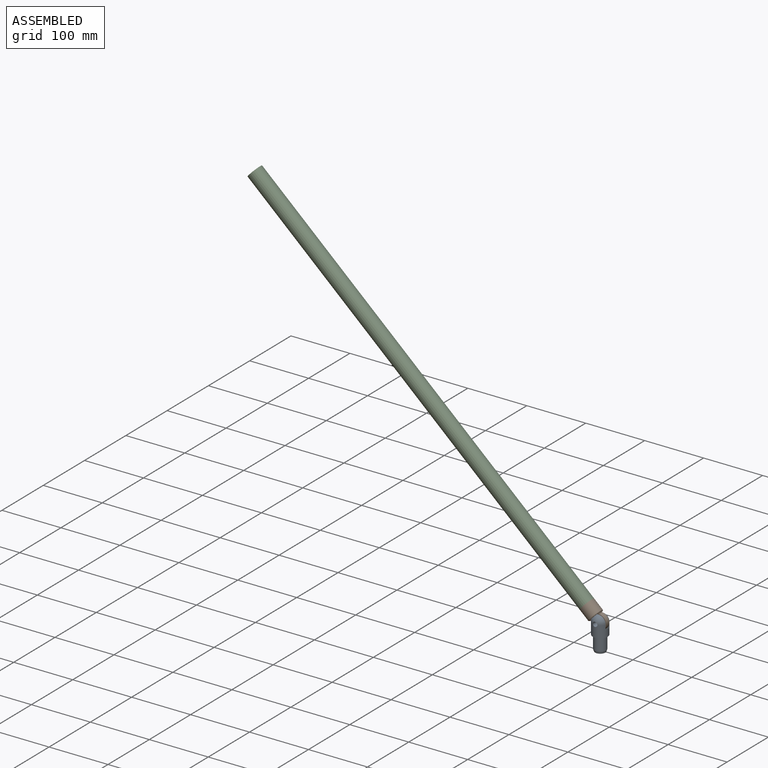
[diagram: assembled view]
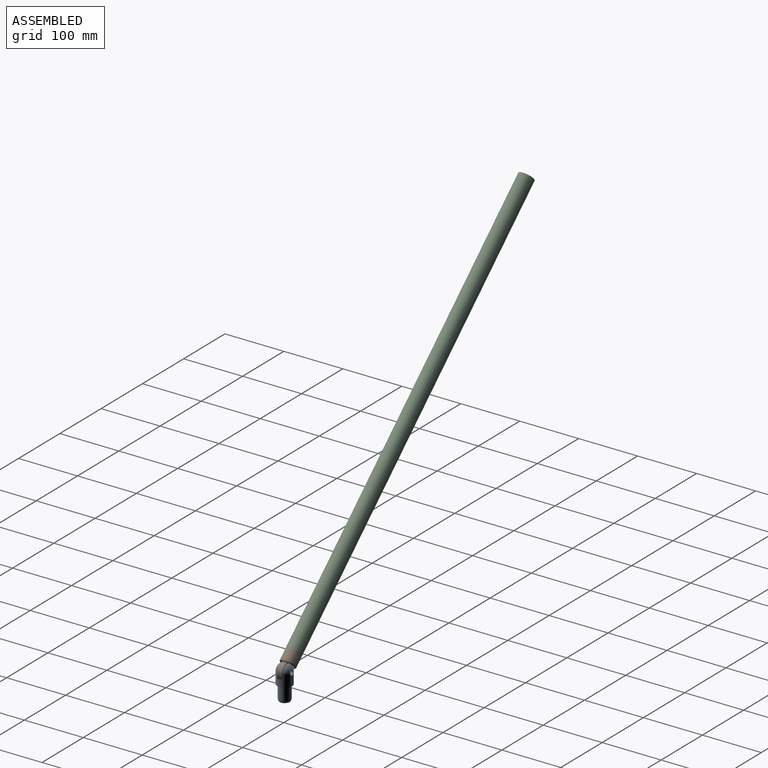
[diagram: assembled view, second angle]
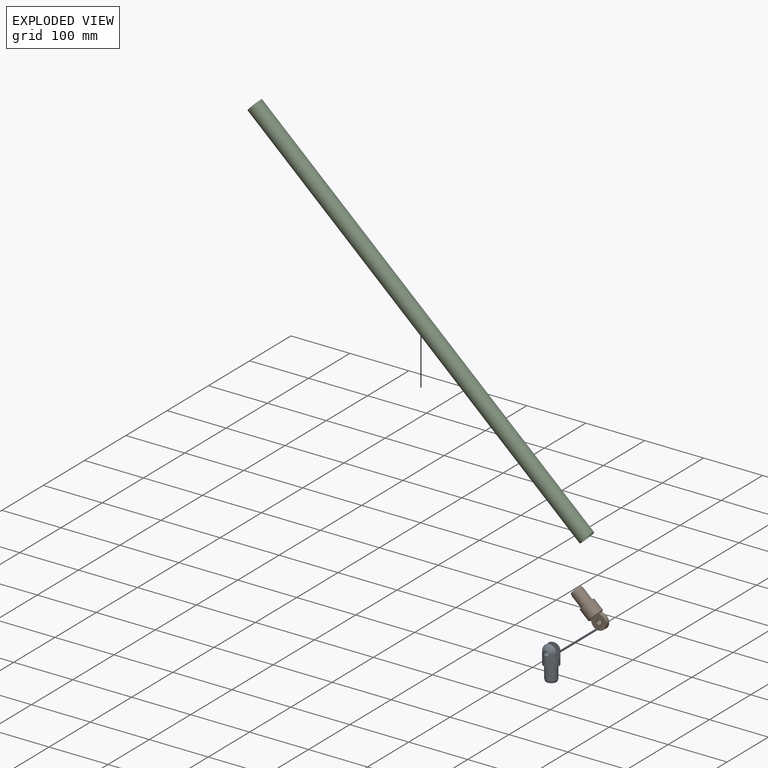
[diagram: exploded view]
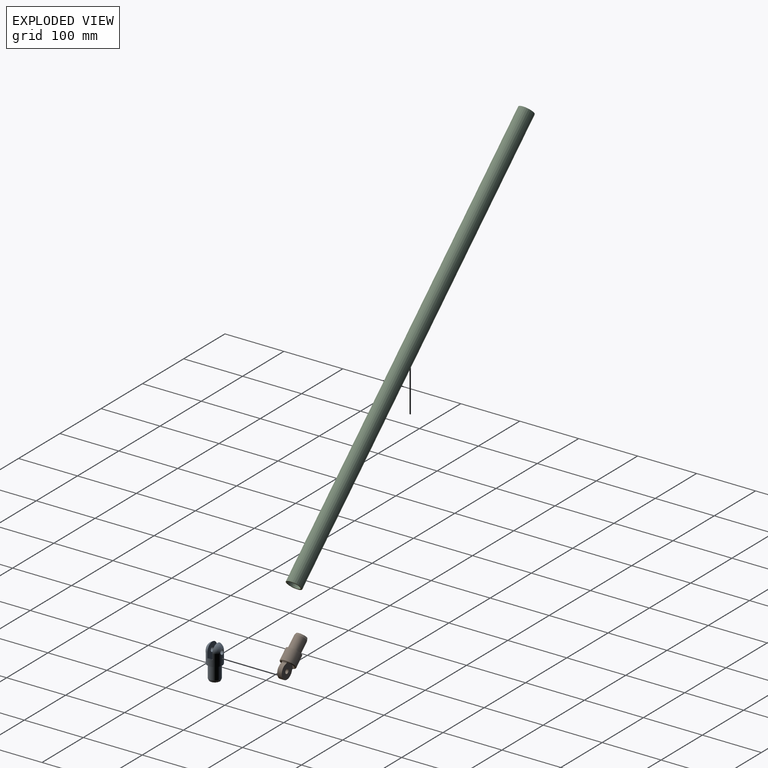
[diagram: exploded view, second angle]
ASSEMBLY  parts=3 mates=2
PART A: 12 faces, bbox 25.4x25.4x57.8 mm
  f0: sphere r=12.7mm, area 316.2mm2, adj f1,f6,f7
  f1: cylinder r=12.7mm len=25.4mm, axis (0,0,1), area 1425.6mm2, adj f0,f2,f3,f4,f5,f6,f7,f8
  f2: sphere r=12.7mm, area 316.2mm2, adj f1,f5,f8
  f3: plane 25.4x25.4mm, normal (0,0,-1), area 198.4mm2, adj f1,f9
  f4: cylinder r=15.24mm len=25.4mm, axis (0,1,0), area 244.8mm2, adj f1,f5,f6
  f5: plane 27.23x23.98mm, normal (0,1,0), area 503.2mm2, adj f1,f2,f4,f8
  f6: plane 27.23x23.98mm, normal (0,-1,0), area 503.2mm2, adj f0,f1,f4,f7
  f7: cylinder r=3.81mm len=8.51mm, axis (0,-1,0), area 193.2mm2, adj f0,f1,f6
  f8: cylinder r=3.81mm len=8.51mm, axis (0,-1,0), area 193.2mm2, adj f1,f2,f5
  f9: cylinder r=9.91mm len=21.91mm, axis (0,0,1), area 1363.7mm2, adj f3,f11
  f10: plane 17.27x17.27mm, normal (0,0,-1), area 234.3mm2, adj f11
  f11: cone r=8.64mm half-angle=20deg, axis (0,0,1), area 216.3mm2, adj f9,f10
PART B: 14 faces, bbox 27.5x27.5x68.6 mm
  f0: sphere r=13.33mm, area 105.3mm2, adj f6,f10
  f1: cylinder r=12.7mm len=25.4mm, axis (0,0,-1), area 1549.5mm2, adj f2,f10
  f2: plane 25.4x25.4mm, normal (0,0,-1), area 198.4mm2, adj f1,f11
  f3: sphere r=13.33mm, area 105.3mm2, adj f7,f10
  f4: plane 7.62x1.72mm, normal (0,0.83,0.56), area 15mm2, adj f6,f7,f8,f10
  f5: plane 7.62x1.72mm, normal (0,-0.83,0.56), area 15mm2, adj f6,f7,f8,f10
  f6: plane 26.77x25.42mm, normal (1,0,0), area 490.1mm2, adj f0,f4,f5,f8,f9,f10
  f7: plane 26.77x25.42mm, normal (-1,0,0), area 490.1mm2, adj f3,f4,f5,f8,f9,f10
  f8: cylinder r=12.7mm len=25.4mm, axis (-1,0,0), area 434.4mm2, adj f4,f5,f6,f7
  f9: cylinder r=3.81mm len=7.62mm, axis (-1,0,0), area 182.4mm2, adj f6,f7
  f10: torus R=11.18mm, axis (0,0,1), area 247.5mm2, adj f0,f1,f3,f4,f5,f6,f7
  f11: cylinder r=9.91mm len=21.91mm, axis (0,0,1), area 1363.7mm2, adj f2,f13
  f12: plane 17.27x17.27mm, normal (0,0,-1), area 234.3mm2, adj f13
  f13: cone r=8.64mm half-angle=20deg, axis (0,0,1), area 216.3mm2, adj f11,f12
PART C: 4 faces, bbox 25.4x25.4x762 mm
  f0: cylinder r=10.16mm len=762mm, axis (0,0,-1), area 48643.9mm2, adj f2,f3
  f1: cylinder r=12.7mm len=762mm, axis (0,0,-1), area 60804.9mm2, adj f2,f3
  f2: plane 25.4x25.4mm, normal (0,0,1), area 182.4mm2, adj f0,f1
  f3: plane 25.4x25.4mm, normal (0,0,-1), area 182.4mm2, adj f0,f1
PLACE A t=(62.15,-24.87,41.35)mm fixed
PLACE B rot(axis=(0.67,0.67,0.3),146.8deg) t=(39.62,-24.87,61.88)mm
PLACE C rot(axis=(0,-1,0),47.7deg) t=(39.62,-24.87,61.88)mm
MATE fastened C.f0 <-> B.f1  axis (0.74,0,-0.67) through (39.62,-24.87,61.88)mm
MATE revolute B.f8 <-> A.f4  axis (0,-1,0) through (62.15,-28.68,41.35)mm
